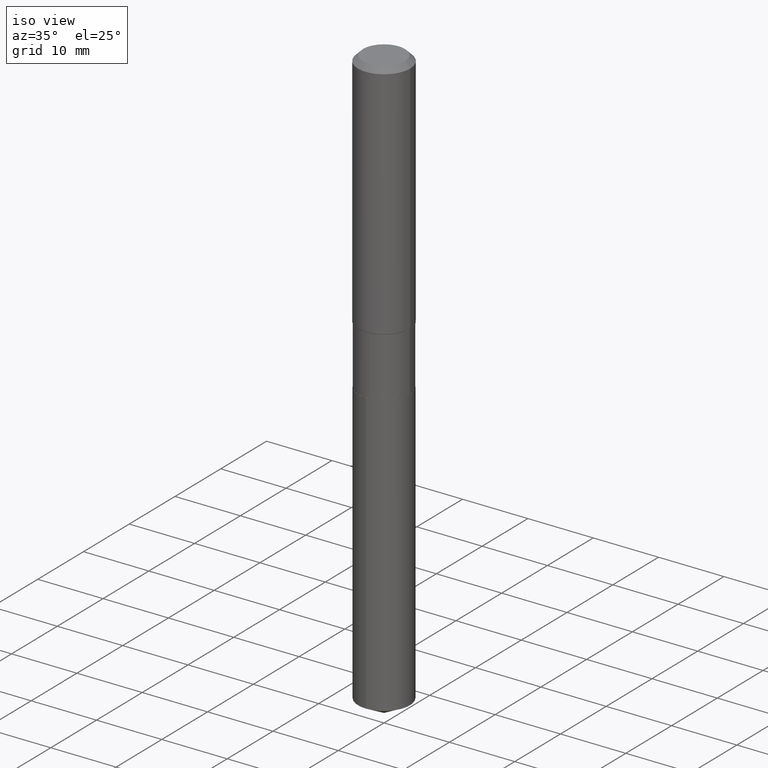
[diagram: clean part render]
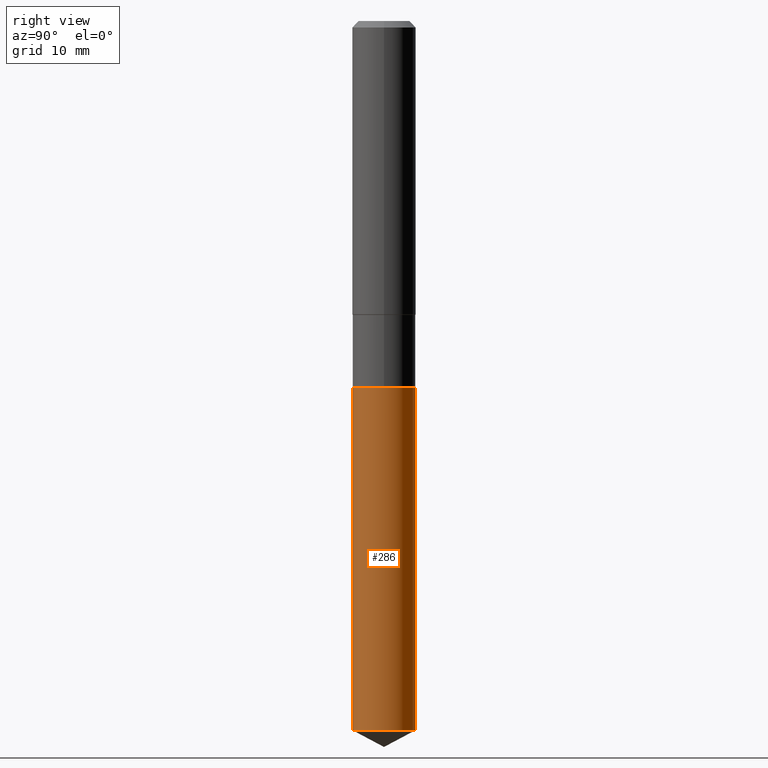
[diagram: tour spotlight — one face highlighted and labeled with its STEP entity id]
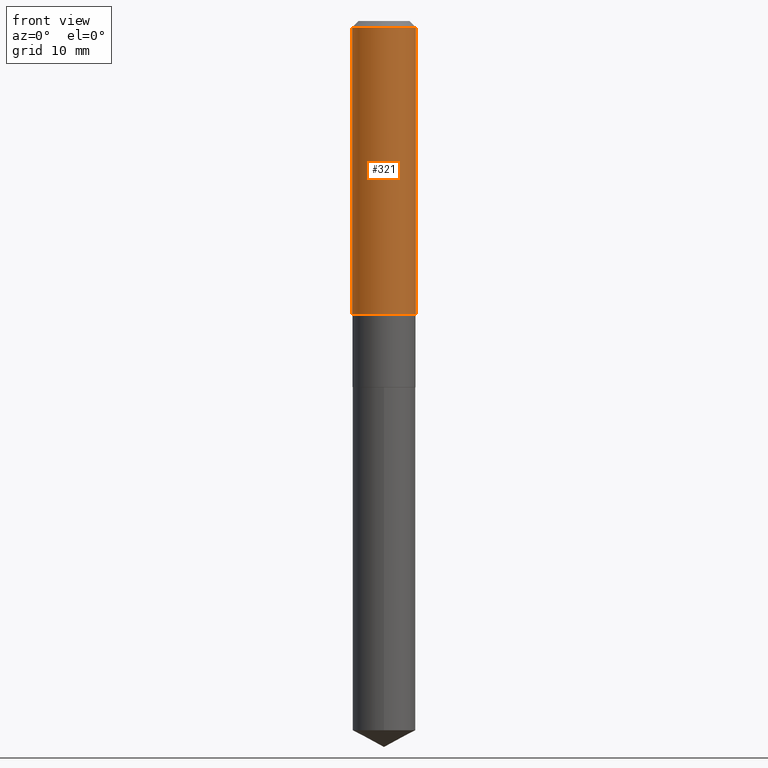
[diagram: tour spotlight — one face highlighted and labeled with its STEP entity id]
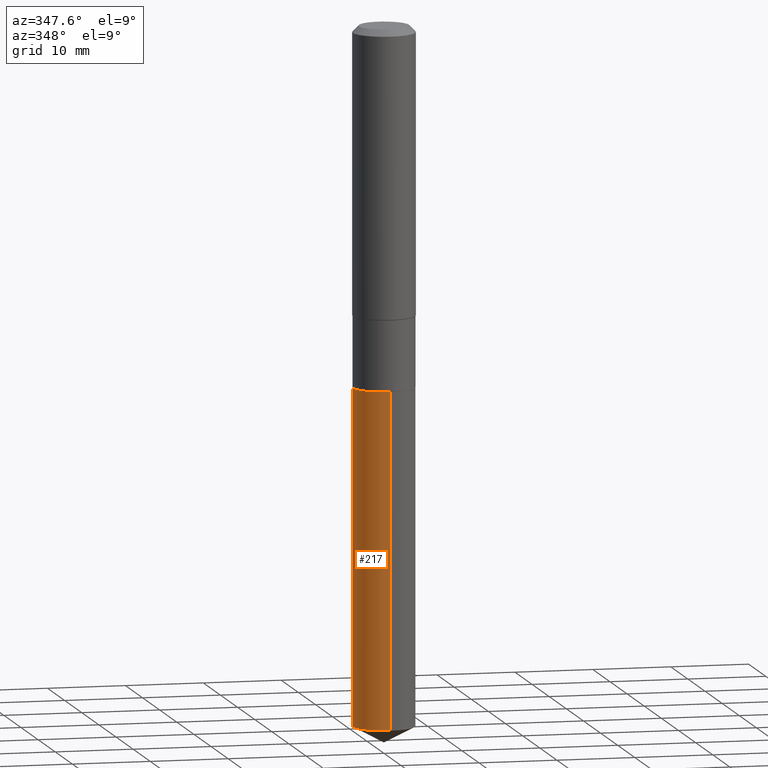
[diagram: tour spotlight — one face highlighted and labeled with its STEP entity id]
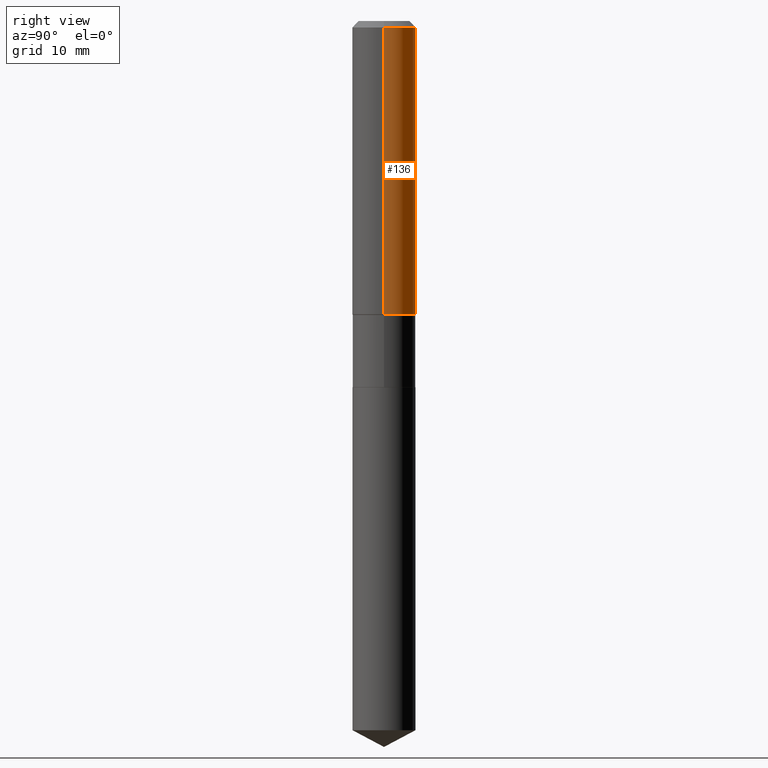
[diagram: tour spotlight — one face highlighted and labeled with its STEP entity id]
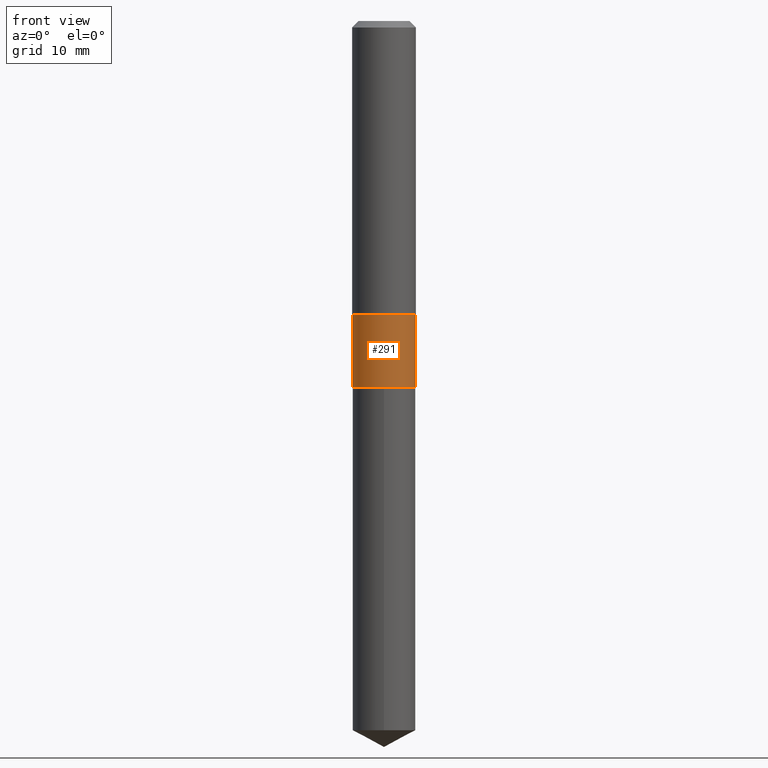
[diagram: tour spotlight — one face highlighted and labeled with its STEP entity id]
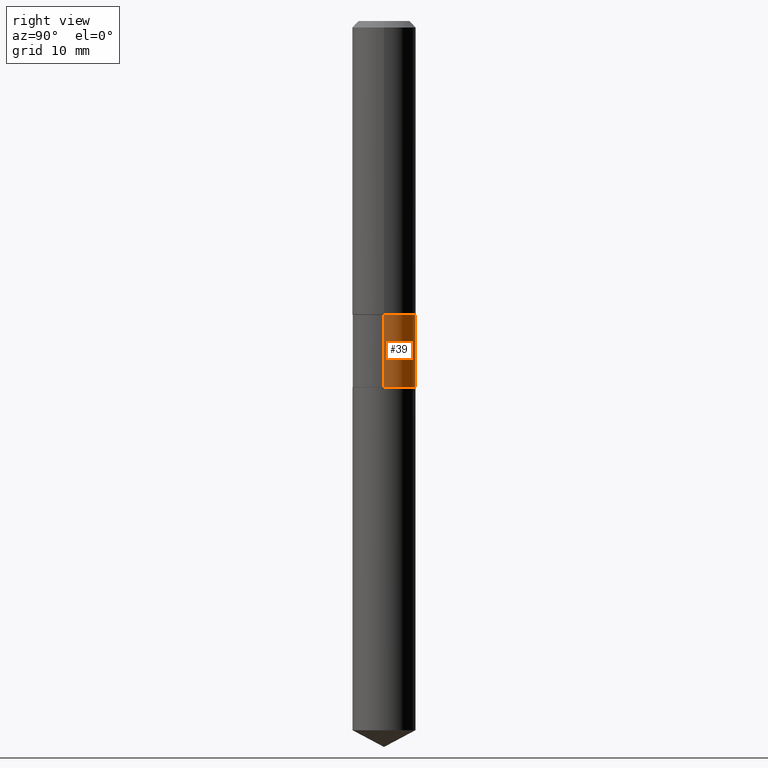
[diagram: tour spotlight — one face highlighted and labeled with its STEP entity id]
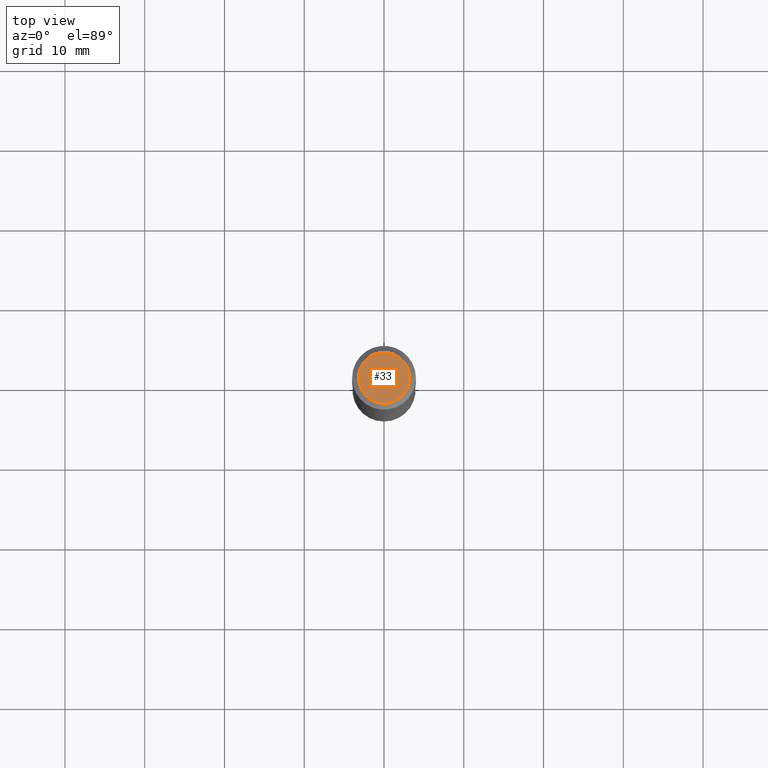
[diagram: tour spotlight — one face highlighted and labeled with its STEP entity id]
A machine part: a face-by-face anatomy tour. The part has 17 B-rep faces; the first image is the clean iso view, then the 7 largest visible faces are spotlighted one at a time (largest first), each with its STEP entity span.

Face 1 — right view, entity #286. In plain terms, the highlighted cylindrical surface (edge-blend (fillet) strip) has radius 3.9497 mm, axis along (-0, 0, 1).
Definition (entity closure, byte-faithful):
#11 = DIRECTION ( 'NONE',  ( -2.445434489770321491E-29, 3.491530481902329465E-15, 1.000000000000000000 ) ) ;
#16 = CARTESIAN_POINT ( 'NONE',  ( -1.085850696380170092E-15, -0.1555000000000062998, -1.807099999999999707 ) ) ;
#23 = CYLINDRICAL_SURFACE ( 'NONE', #138, 0.1554999999999999993 ) ;
#53 = CARTESIAN_POINT ( 'NONE',  ( 1.104893954107041376E-15, 0.1554999999999877869, -3.500019183376640530 ) ) ;
#72 = AXIS2_PLACEMENT_3D ( 'NONE', #437, #113, #259 ) ;
#73 = VERTEX_POINT ( 'NONE', #226 ) ;
#84 = ORIENTED_EDGE ( 'NONE', *, *, #387, .T. ) ;
#95 = DIRECTION ( 'NONE',  ( -2.445434489770321491E-29, 3.491530481902329860E-15, 1.000000000000000000 ) ) ;
#100 = CARTESIAN_POINT ( 'NONE',  ( -1.085850696380170092E-15, -0.1555000000000062998, -1.807099999999999707 ) ) ;
#113 = DIRECTION ( 'NONE',  ( -2.445434489770321491E-29, 3.491530481902329860E-15, 1.000000000000000000 ) ) ;
#129 = LINE ( 'NONE', #16, #158 ) ;
#131 = DIRECTION ( 'NONE',  ( -6.982962677686265133E-15, -1.000000000000000000, 3.513630860018345064E-15 ) ) ;
#138 = AXIS2_PLACEMENT_3D ( 'NONE', #357, #140, #427 ) ;
#140 = DIRECTION ( 'NONE',  ( -2.445434489770321491E-29, 3.491530481902329860E-15, 1.000000000000000000 ) ) ;
#158 = VECTOR ( 'NONE', #355, 39.37007874015748143 ) ;
#184 = EDGE_LOOP ( 'NONE', ( #84, #376, #360, #477 ) ) ;
#190 = VERTEX_POINT ( 'NONE', #209 ) ;
#191 = EDGE_CURVE ( 'NONE', #190, #282, #129, .T. ) ;
#199 = LINE ( 'NONE', #207, #379 ) ;
#207 = CARTESIAN_POINT ( 'NONE',  ( 1.104893954106999566E-15, 0.1554999999999936711, -1.807100000000000817 ) ) ;
#209 = CARTESIAN_POINT ( 'NONE',  ( -1.085850696380128874E-15, -0.1555000000000122118, -3.500019183376639642 ) ) ;
#226 = CARTESIAN_POINT ( 'NONE',  ( 1.104893954107041376E-15, 0.1554999999999936711, -1.807100000000000817 ) ) ;
#233 = AXIS2_PLACEMENT_3D ( 'NONE', #237, #95, #131 ) ;
#237 = CARTESIAN_POINT ( 'NONE',  ( 8.559129639080203787E-29, -1.222033485958018739E-14, -3.500019183376640086 ) ) ;
#251 = CIRCLE ( 'NONE', #72, 0.1554999999999999993 ) ;
#259 = DIRECTION ( 'NONE',  ( -6.982962677686265133E-15, -1.000000000000000000, 3.513630860018345064E-15 ) ) ;
#276 = EDGE_CURVE ( 'NONE', #282, #73, #251, .T. ) ;
#282 = VERTEX_POINT ( 'NONE', #100 ) ;
#286 = ADVANCED_FACE ( 'NONE', ( #398 ), #23, .T. ) ;
#355 = DIRECTION ( 'NONE',  ( -2.445434489770321491E-29, 3.491530481902329465E-15, 1.000000000000000000 ) ) ;
#357 = CARTESIAN_POINT ( 'NONE',  ( 4.419206679657160853E-29, -6.309455927423449056E-15, -1.807100000000000151 ) ) ;
#358 = VERTEX_POINT ( 'NONE', #53 ) ;
#360 = ORIENTED_EDGE ( 'NONE', *, *, #276, .F. ) ;
#365 = CIRCLE ( 'NONE', #233, 0.1554999999999999993 ) ;
#376 = ORIENTED_EDGE ( 'NONE', *, *, #396, .T. ) ;
#379 = VECTOR ( 'NONE', #11, 39.37007874015748143 ) ;
#387 = EDGE_CURVE ( 'NONE', #190, #358, #365, .T. ) ;
#396 = EDGE_CURVE ( 'NONE', #358, #73, #199, .T. ) ;
#398 = FACE_OUTER_BOUND ( 'NONE', #184, .T. ) ;
#427 = DIRECTION ( 'NONE',  ( -6.982962677686265133E-15, -1.000000000000000000, 3.513630860018345064E-15 ) ) ;
#437 = CARTESIAN_POINT ( 'NONE',  ( 4.419206679657160853E-29, -6.309455927423449056E-15, -1.807100000000000151 ) ) ;
#477 = ORIENTED_EDGE ( 'NONE', *, *, #191, .F. ) ;

Face 2 — front view, entity #321. In plain terms, the highlighted cylindrical surface (edge-blend (fillet) strip) has radius 4.0005 mm, axis along (-0, 0, 1).
Definition (entity closure, byte-faithful):
#6 = VERTEX_POINT ( 'NONE', #337 ) ;
#18 = CARTESIAN_POINT ( 'NONE',  ( 0.000000000000000000, 0.000000000000000000, 0.000000000000000000 ) ) ;
#27 = ORIENTED_EDGE ( 'NONE', *, *, #166, .T. ) ;
#60 = CARTESIAN_POINT ( 'NONE',  ( -0.1575000000000001676, -3.934465281019408143E-15, -1.447399999999999798 ) ) ;
#64 = EDGE_LOOP ( 'NONE', ( #110, #27, #435, #405 ) ) ;
#89 = DIRECTION ( 'NONE',  ( 1.000000000000000000, -6.982962677686265922E-15, 0.000000000000000000 ) ) ;
#94 = CARTESIAN_POINT ( 'NONE',  ( 0.1575000000000000011, -1.209798283909146741E-15, -0.03150000000000019451 ) ) ;
#99 = CARTESIAN_POINT ( 'NONE',  ( 3.539571550072366058E-29, -5.053570089841568113E-15, -1.447399999999999798 ) ) ;
#108 = CIRCLE ( 'NONE', #142, 0.1575000000000001676 ) ;
#110 = ORIENTED_EDGE ( 'NONE', *, *, #164, .F. ) ;
#133 = CARTESIAN_POINT ( 'NONE',  ( 7.703226739483226971E-31, -1.099816621735597538E-16, -0.03150000000000019451 ) ) ;
#134 = DIRECTION ( 'NONE',  ( -2.445468806185136597E-29, 3.491481338843145583E-15, 1.000000000000000000 ) ) ;
#142 = AXIS2_PLACEMENT_3D ( 'NONE', #99, #167, #349 ) ;
#164 = EDGE_CURVE ( 'NONE', #322, #415, #239, .T. ) ;
#166 = EDGE_CURVE ( 'NONE', #322, #6, #108, .T. ) ;
#167 = DIRECTION ( 'NONE',  ( -2.445468806185136597E-29, 3.491481338843145583E-15, 1.000000000000000000 ) ) ;
#168 = DIRECTION ( 'NONE',  ( -2.445468806185136597E-29, 3.491481338843145583E-15, 1.000000000000000000 ) ) ;
#169 = CIRCLE ( 'NONE', #223, 0.1575000000000000011 ) ;
#223 = AXIS2_PLACEMENT_3D ( 'NONE', #133, #168, #89 ) ;
#229 = VERTEX_POINT ( 'NONE', #94 ) ;
#239 = LINE ( 'NONE', #254, #433 ) ;
#254 = CARTESIAN_POINT ( 'NONE',  ( -0.1575000000000000844, 1.119104808822158392E-15, -7.747322767151481189E-30 ) ) ;
#269 = AXIS2_PLACEMENT_3D ( 'NONE', #18, #134, #394 ) ;
#315 = VECTOR ( 'NONE', #393, 39.37007874015748143 ) ;
#321 = ADVANCED_FACE ( 'NONE', ( #431 ), #359, .T. ) ;
#322 = VERTEX_POINT ( 'NONE', #60 ) ;
#330 = EDGE_CURVE ( 'NONE', #6, #229, #454, .T. ) ;
#337 = CARTESIAN_POINT ( 'NONE',  ( 0.1575000000000001676, -6.153386711577156382E-15, -1.447399999999999798 ) ) ;
#345 = EDGE_CURVE ( 'NONE', #415, #229, #169, .T. ) ;
#349 = DIRECTION ( 'NONE',  ( 1.000000000000000000, -6.982962677686267499E-15, 0.000000000000000000 ) ) ;
#359 = CYLINDRICAL_SURFACE ( 'NONE', #269, 0.1575000000000000844 ) ;
#385 = DIRECTION ( 'NONE',  ( -2.445468806185136877E-29, 3.491481338843145188E-15, 1.000000000000000000 ) ) ;
#393 = DIRECTION ( 'NONE',  ( -2.445468806185136877E-29, 3.491481338843145188E-15, 1.000000000000000000 ) ) ;
#394 = DIRECTION ( 'NONE',  ( 1.000000000000000000, -6.982962677686267499E-15, 4.876176775795936353E-29 ) ) ;
#405 = ORIENTED_EDGE ( 'NONE', *, *, #345, .F. ) ;
#415 = VERTEX_POINT ( 'NONE', #416 ) ;
#416 = CARTESIAN_POINT ( 'NONE',  ( -0.1575000000000000011, -1.462671067185405196E-15, -0.03150000000000019451 ) ) ;
#426 = CARTESIAN_POINT ( 'NONE',  ( 0.1575000000000000844, -1.099816621735587677E-15, 7.679978421878603638E-30 ) ) ;
#431 = FACE_OUTER_BOUND ( 'NONE', #64, .T. ) ;
#433 = VECTOR ( 'NONE', #385, 39.37007874015748143 ) ;
#435 = ORIENTED_EDGE ( 'NONE', *, *, #330, .T. ) ;
#454 = LINE ( 'NONE', #426, #315 ) ;

Face 3 — auxiliary view, entity #217. In plain terms, the highlighted cylindrical surface (edge-blend (fillet) strip) has radius 3.9497 mm, axis along (-0, 0, 1).
Definition (entity closure, byte-faithful):
#11 = DIRECTION ( 'NONE',  ( -2.445434489770321491E-29, 3.491530481902329465E-15, 1.000000000000000000 ) ) ;
#16 = CARTESIAN_POINT ( 'NONE',  ( -1.085850696380170092E-15, -0.1555000000000062998, -1.807099999999999707 ) ) ;
#19 = DIRECTION ( 'NONE',  ( -6.982962677686265133E-15, -1.000000000000000000, 3.513630860018345064E-15 ) ) ;
#30 = AXIS2_PLACEMENT_3D ( 'NONE', #468, #275, #213 ) ;
#53 = CARTESIAN_POINT ( 'NONE',  ( 1.104893954107041376E-15, 0.1554999999999877869, -3.500019183376640530 ) ) ;
#73 = VERTEX_POINT ( 'NONE', #226 ) ;
#88 = CIRCLE ( 'NONE', #30, 0.1554999999999999993 ) ;
#91 = CYLINDRICAL_SURFACE ( 'NONE', #406, 0.1554999999999999993 ) ;
#100 = CARTESIAN_POINT ( 'NONE',  ( -1.085850696380170092E-15, -0.1555000000000062998, -1.807099999999999707 ) ) ;
#121 = EDGE_CURVE ( 'NONE', #73, #282, #88, .T. ) ;
#129 = LINE ( 'NONE', #16, #158 ) ;
#150 = CIRCLE ( 'NONE', #318, 0.1554999999999999993 ) ;
#152 = ORIENTED_EDGE ( 'NONE', *, *, #191, .T. ) ;
#158 = VECTOR ( 'NONE', #355, 39.37007874015748143 ) ;
#190 = VERTEX_POINT ( 'NONE', #209 ) ;
#191 = EDGE_CURVE ( 'NONE', #190, #282, #129, .T. ) ;
#199 = LINE ( 'NONE', #207, #379 ) ;
#207 = CARTESIAN_POINT ( 'NONE',  ( 1.104893954106999566E-15, 0.1554999999999936711, -1.807100000000000817 ) ) ;
#209 = CARTESIAN_POINT ( 'NONE',  ( -1.085850696380128874E-15, -0.1555000000000122118, -3.500019183376639642 ) ) ;
#212 = ORIENTED_EDGE ( 'NONE', *, *, #121, .F. ) ;
#213 = DIRECTION ( 'NONE',  ( -6.982962677686265133E-15, -1.000000000000000000, 3.513630860018345064E-15 ) ) ;
#217 = ADVANCED_FACE ( 'NONE', ( #389 ), #91, .T. ) ;
#226 = CARTESIAN_POINT ( 'NONE',  ( 1.104893954107041376E-15, 0.1554999999999936711, -1.807100000000000817 ) ) ;
#230 = CARTESIAN_POINT ( 'NONE',  ( 8.559129639080203787E-29, -1.222033485958018739E-14, -3.500019183376640086 ) ) ;
#275 = DIRECTION ( 'NONE',  ( -2.445434489770321491E-29, 3.491530481902329860E-15, 1.000000000000000000 ) ) ;
#282 = VERTEX_POINT ( 'NONE', #100 ) ;
#290 = ORIENTED_EDGE ( 'NONE', *, *, #396, .F. ) ;
#301 = DIRECTION ( 'NONE',  ( -2.445434489770321491E-29, 3.491530481902329860E-15, 1.000000000000000000 ) ) ;
#312 = DIRECTION ( 'NONE',  ( -2.445434489770321491E-29, 3.491530481902329860E-15, 1.000000000000000000 ) ) ;
#318 = AXIS2_PLACEMENT_3D ( 'NONE', #230, #301, #424 ) ;
#355 = DIRECTION ( 'NONE',  ( -2.445434489770321491E-29, 3.491530481902329465E-15, 1.000000000000000000 ) ) ;
#358 = VERTEX_POINT ( 'NONE', #53 ) ;
#379 = VECTOR ( 'NONE', #11, 39.37007874015748143 ) ;
#389 = FACE_OUTER_BOUND ( 'NONE', #411, .T. ) ;
#396 = EDGE_CURVE ( 'NONE', #358, #73, #199, .T. ) ;
#406 = AXIS2_PLACEMENT_3D ( 'NONE', #463, #312, #19 ) ;
#411 = EDGE_LOOP ( 'NONE', ( #290, #485, #152, #212 ) ) ;
#424 = DIRECTION ( 'NONE',  ( -6.982962677686265133E-15, -1.000000000000000000, 3.513630860018345064E-15 ) ) ;
#429 = EDGE_CURVE ( 'NONE', #358, #190, #150, .T. ) ;
#463 = CARTESIAN_POINT ( 'NONE',  ( 4.419206679657160853E-29, -6.309455927423449056E-15, -1.807100000000000151 ) ) ;
#468 = CARTESIAN_POINT ( 'NONE',  ( 4.419206679657160853E-29, -6.309455927423449056E-15, -1.807100000000000151 ) ) ;
#485 = ORIENTED_EDGE ( 'NONE', *, *, #429, .T. ) ;

Face 4 — right view, entity #136. In plain terms, the highlighted cylindrical surface (edge-blend (fillet) strip) has radius 4.0005 mm, axis along (-0, 0, 1).
Definition (entity closure, byte-faithful):
#6 = VERTEX_POINT ( 'NONE', #337 ) ;
#14 = CIRCLE ( 'NONE', #283, 0.1575000000000001676 ) ;
#52 = CARTESIAN_POINT ( 'NONE',  ( 0.000000000000000000, 0.000000000000000000, 0.000000000000000000 ) ) ;
#60 = CARTESIAN_POINT ( 'NONE',  ( -0.1575000000000001676, -3.934465281019408143E-15, -1.447399999999999798 ) ) ;
#85 = DIRECTION ( 'NONE',  ( 1.000000000000000000, -6.982962677686267499E-15, 0.000000000000000000 ) ) ;
#94 = CARTESIAN_POINT ( 'NONE',  ( 0.1575000000000000011, -1.209798283909146741E-15, -0.03150000000000019451 ) ) ;
#112 = ORIENTED_EDGE ( 'NONE', *, *, #375, .T. ) ;
#123 = CARTESIAN_POINT ( 'NONE',  ( 7.703226739483226971E-31, -1.099816621735597538E-16, -0.03150000000000019451 ) ) ;
#132 = FACE_OUTER_BOUND ( 'NONE', #328, .T. ) ;
#135 = CYLINDRICAL_SURFACE ( 'NONE', #294, 0.1575000000000000844 ) ;
#136 = ADVANCED_FACE ( 'NONE', ( #132 ), #135, .T. ) ;
#139 = DIRECTION ( 'NONE',  ( -2.445468806185136597E-29, 3.491481338843145583E-15, 1.000000000000000000 ) ) ;
#164 = EDGE_CURVE ( 'NONE', #322, #415, #239, .T. ) ;
#206 = DIRECTION ( 'NONE',  ( 1.000000000000000000, -6.982962677686267499E-15, 4.876176775795936353E-29 ) ) ;
#229 = VERTEX_POINT ( 'NONE', #94 ) ;
#239 = LINE ( 'NONE', #254, #433 ) ;
#240 = DIRECTION ( 'NONE',  ( 1.000000000000000000, -6.982962677686265922E-15, 0.000000000000000000 ) ) ;
#243 = CARTESIAN_POINT ( 'NONE',  ( 3.539571550072366058E-29, -5.053570089841568113E-15, -1.447399999999999798 ) ) ;
#254 = CARTESIAN_POINT ( 'NONE',  ( -0.1575000000000000844, 1.119104808822158392E-15, -7.747322767151481189E-30 ) ) ;
#283 = AXIS2_PLACEMENT_3D ( 'NONE', #243, #462, #85 ) ;
#294 = AXIS2_PLACEMENT_3D ( 'NONE', #52, #139, #206 ) ;
#315 = VECTOR ( 'NONE', #393, 39.37007874015748143 ) ;
#322 = VERTEX_POINT ( 'NONE', #60 ) ;
#328 = EDGE_LOOP ( 'NONE', ( #112, #414, #368, #402 ) ) ;
#330 = EDGE_CURVE ( 'NONE', #6, #229, #454, .T. ) ;
#336 = EDGE_CURVE ( 'NONE', #229, #415, #440, .T. ) ;
#337 = CARTESIAN_POINT ( 'NONE',  ( 0.1575000000000001676, -6.153386711577156382E-15, -1.447399999999999798 ) ) ;
#338 = DIRECTION ( 'NONE',  ( -2.445468806185136597E-29, 3.491481338843145583E-15, 1.000000000000000000 ) ) ;
#368 = ORIENTED_EDGE ( 'NONE', *, *, #336, .F. ) ;
#372 = AXIS2_PLACEMENT_3D ( 'NONE', #123, #338, #240 ) ;
#375 = EDGE_CURVE ( 'NONE', #6, #322, #14, .T. ) ;
#385 = DIRECTION ( 'NONE',  ( -2.445468806185136877E-29, 3.491481338843145188E-15, 1.000000000000000000 ) ) ;
#393 = DIRECTION ( 'NONE',  ( -2.445468806185136877E-29, 3.491481338843145188E-15, 1.000000000000000000 ) ) ;
#402 = ORIENTED_EDGE ( 'NONE', *, *, #330, .F. ) ;
#414 = ORIENTED_EDGE ( 'NONE', *, *, #164, .T. ) ;
#415 = VERTEX_POINT ( 'NONE', #416 ) ;
#416 = CARTESIAN_POINT ( 'NONE',  ( -0.1575000000000000011, -1.462671067185405196E-15, -0.03150000000000019451 ) ) ;
#426 = CARTESIAN_POINT ( 'NONE',  ( 0.1575000000000000844, -1.099816621735587677E-15, 7.679978421878603638E-30 ) ) ;
#433 = VECTOR ( 'NONE', #385, 39.37007874015748143 ) ;
#440 = CIRCLE ( 'NONE', #372, 0.1575000000000000011 ) ;
#454 = LINE ( 'NONE', #426, #315 ) ;
#462 = DIRECTION ( 'NONE',  ( -2.445468806185136597E-29, 3.491481338843145583E-15, 1.000000000000000000 ) ) ;

Face 5 — front view, entity #291. In plain terms, the highlighted cylindrical surface (edge-blend (fillet) strip) has radius 3.9497 mm, axis along (-0, 0, 1).
Definition (entity closure, byte-faithful):
#26 = DIRECTION ( 'NONE',  ( -2.445468806185136597E-29, 3.491481338843145583E-15, 1.000000000000000000 ) ) ;
#29 = DIRECTION ( 'NONE',  ( -2.445468806185136597E-29, 3.491481338843145583E-15, 1.000000000000000000 ) ) ;
#35 = VERTEX_POINT ( 'NONE', #410 ) ;
#41 = ORIENTED_EDGE ( 'NONE', *, *, #111, .T. ) ;
#44 = EDGE_CURVE ( 'NONE', #35, #482, #189, .T. ) ;
#51 = CARTESIAN_POINT ( 'NONE',  ( -0.1554999999999999438, -4.579237665529685647E-15, -1.449399999999999800 ) ) ;
#65 = DIRECTION ( 'NONE',  ( 1.000000000000000000, -6.982962677686268288E-15, 4.876176775795936353E-29 ) ) ;
#69 = EDGE_LOOP ( 'NONE', ( #332, #41, #162, #74 ) ) ;
#74 = ORIENTED_EDGE ( 'NONE', *, *, #148, .F. ) ;
#75 = EDGE_CURVE ( 'NONE', #157, #473, #370, .T. ) ;
#80 = CIRCLE ( 'NONE', #278, 0.1554999999999999438 ) ;
#103 = VECTOR ( 'NONE', #488, 39.37007874015748143 ) ;
#111 = EDGE_CURVE ( 'NONE', #35, #157, #288, .T. ) ;
#114 = CARTESIAN_POINT ( 'NONE',  ( -0.1554999999999999438, 1.104893954106955390E-15, -7.648944065346376022E-30 ) ) ;
#148 = EDGE_CURVE ( 'NONE', #482, #473, #80, .T. ) ;
#157 = VERTEX_POINT ( 'NONE', #428 ) ;
#162 = ORIENTED_EDGE ( 'NONE', *, *, #75, .T. ) ;
#180 = VECTOR ( 'NONE', #418, 39.37007874015748143 ) ;
#181 = DIRECTION ( 'NONE',  ( 1.000000000000000000, -6.982962677686266711E-15, 0.000000000000000000 ) ) ;
#189 = LINE ( 'NONE', #114, #180 ) ;
#203 = DIRECTION ( 'NONE',  ( 1.000000000000000000, -6.982962677686269077E-15, 0.000000000000000000 ) ) ;
#210 = FACE_OUTER_BOUND ( 'NONE', #69, .T. ) ;
#250 = CARTESIAN_POINT ( 'NONE',  ( 4.417983945254068051E-29, -6.307710186754027552E-15, -1.806600000000000428 ) ) ;
#270 = CARTESIAN_POINT ( 'NONE',  ( 3.544462487684736704E-29, -5.060553052519254127E-15, -1.449399999999999800 ) ) ;
#278 = AXIS2_PLACEMENT_3D ( 'NONE', #270, #343, #203 ) ;
#288 = CIRCLE ( 'NONE', #371, 0.1554999999999999993 ) ;
#291 = ADVANCED_FACE ( 'NONE', ( #210 ), #310, .T. ) ;
#310 = CYLINDRICAL_SURFACE ( 'NONE', #486, 0.1554999999999999438 ) ;
#331 = CARTESIAN_POINT ( 'NONE',  ( 0.1554999999999999438, -1.085850696380214268E-15, 7.582454886362678420E-30 ) ) ;
#332 = ORIENTED_EDGE ( 'NONE', *, *, #44, .F. ) ;
#343 = DIRECTION ( 'NONE',  ( -2.445468806185136597E-29, 3.491481338843145583E-15, 1.000000000000000000 ) ) ;
#370 = LINE ( 'NONE', #331, #103 ) ;
#371 = AXIS2_PLACEMENT_3D ( 'NONE', #250, #29, #181 ) ;
#410 = CARTESIAN_POINT ( 'NONE',  ( -0.1554999999999999993, -4.579237665529685647E-15, -1.806600000000000428 ) ) ;
#418 = DIRECTION ( 'NONE',  ( -2.445468806185136877E-29, 3.491481338843145188E-15, 1.000000000000000000 ) ) ;
#428 = CARTESIAN_POINT ( 'NONE',  ( 0.1554999999999999993, -7.393560883134242215E-15, -1.806600000000000428 ) ) ;
#432 = CARTESIAN_POINT ( 'NONE',  ( 0.000000000000000000, 0.000000000000000000, 0.000000000000000000 ) ) ;
#459 = CARTESIAN_POINT ( 'NONE',  ( 0.1554999999999999438, -6.146403748899468790E-15, -1.449399999999999800 ) ) ;
#473 = VERTEX_POINT ( 'NONE', #459 ) ;
#482 = VERTEX_POINT ( 'NONE', #51 ) ;
#486 = AXIS2_PLACEMENT_3D ( 'NONE', #432, #26, #65 ) ;
#488 = DIRECTION ( 'NONE',  ( -2.445468806185136877E-29, 3.491481338843145188E-15, 1.000000000000000000 ) ) ;

Face 6 — right view, entity #39. In plain terms, the highlighted cylindrical surface (edge-blend (fillet) strip) has radius 3.9497 mm, axis along (-0, 0, 1).
Definition (entity closure, byte-faithful):
#3 = DIRECTION ( 'NONE',  ( 1.000000000000000000, -6.982962677686268288E-15, 4.876176775795936353E-29 ) ) ;
#4 = CIRCLE ( 'NONE', #63, 0.1554999999999999993 ) ;
#35 = VERTEX_POINT ( 'NONE', #410 ) ;
#36 = DIRECTION ( 'NONE',  ( -2.445468806185136597E-29, 3.491481338843145583E-15, 1.000000000000000000 ) ) ;
#39 = ADVANCED_FACE ( 'NONE', ( #262 ), #300, .T. ) ;
#44 = EDGE_CURVE ( 'NONE', #35, #482, #189, .T. ) ;
#51 = CARTESIAN_POINT ( 'NONE',  ( -0.1554999999999999438, -4.579237665529685647E-15, -1.449399999999999800 ) ) ;
#61 = DIRECTION ( 'NONE',  ( 1.000000000000000000, -6.982962677686266711E-15, 0.000000000000000000 ) ) ;
#63 = AXIS2_PLACEMENT_3D ( 'NONE', #306, #67, #61 ) ;
#67 = DIRECTION ( 'NONE',  ( -2.445468806185136597E-29, 3.491481338843145583E-15, 1.000000000000000000 ) ) ;
#75 = EDGE_CURVE ( 'NONE', #157, #473, #370, .T. ) ;
#103 = VECTOR ( 'NONE', #488, 39.37007874015748143 ) ;
#104 = EDGE_LOOP ( 'NONE', ( #436, #363, #257, #147 ) ) ;
#114 = CARTESIAN_POINT ( 'NONE',  ( -0.1554999999999999438, 1.104893954106955390E-15, -7.648944065346376022E-30 ) ) ;
#137 = AXIS2_PLACEMENT_3D ( 'NONE', #266, #453, #3 ) ;
#145 = DIRECTION ( 'NONE',  ( 1.000000000000000000, -6.982962677686269077E-15, 0.000000000000000000 ) ) ;
#147 = ORIENTED_EDGE ( 'NONE', *, *, #75, .F. ) ;
#157 = VERTEX_POINT ( 'NONE', #428 ) ;
#180 = VECTOR ( 'NONE', #418, 39.37007874015748143 ) ;
#185 = EDGE_CURVE ( 'NONE', #157, #35, #4, .T. ) ;
#189 = LINE ( 'NONE', #114, #180 ) ;
#216 = AXIS2_PLACEMENT_3D ( 'NONE', #446, #36, #145 ) ;
#235 = EDGE_CURVE ( 'NONE', #473, #482, #289, .T. ) ;
#257 = ORIENTED_EDGE ( 'NONE', *, *, #235, .F. ) ;
#262 = FACE_OUTER_BOUND ( 'NONE', #104, .T. ) ;
#266 = CARTESIAN_POINT ( 'NONE',  ( 0.000000000000000000, 0.000000000000000000, 0.000000000000000000 ) ) ;
#289 = CIRCLE ( 'NONE', #216, 0.1554999999999999438 ) ;
#300 = CYLINDRICAL_SURFACE ( 'NONE', #137, 0.1554999999999999438 ) ;
#306 = CARTESIAN_POINT ( 'NONE',  ( 4.417983945254068051E-29, -6.307710186754027552E-15, -1.806600000000000428 ) ) ;
#331 = CARTESIAN_POINT ( 'NONE',  ( 0.1554999999999999438, -1.085850696380214268E-15, 7.582454886362678420E-30 ) ) ;
#363 = ORIENTED_EDGE ( 'NONE', *, *, #44, .T. ) ;
#370 = LINE ( 'NONE', #331, #103 ) ;
#410 = CARTESIAN_POINT ( 'NONE',  ( -0.1554999999999999993, -4.579237665529685647E-15, -1.806600000000000428 ) ) ;
#418 = DIRECTION ( 'NONE',  ( -2.445468806185136877E-29, 3.491481338843145188E-15, 1.000000000000000000 ) ) ;
#428 = CARTESIAN_POINT ( 'NONE',  ( 0.1554999999999999993, -7.393560883134242215E-15, -1.806600000000000428 ) ) ;
#436 = ORIENTED_EDGE ( 'NONE', *, *, #185, .T. ) ;
#446 = CARTESIAN_POINT ( 'NONE',  ( 3.544462487684736704E-29, -5.060553052519254127E-15, -1.449399999999999800 ) ) ;
#453 = DIRECTION ( 'NONE',  ( -2.445468806185136597E-29, 3.491481338843145583E-15, 1.000000000000000000 ) ) ;
#459 = CARTESIAN_POINT ( 'NONE',  ( 0.1554999999999999438, -6.146403748899468790E-15, -1.449399999999999800 ) ) ;
#473 = VERTEX_POINT ( 'NONE', #459 ) ;
#482 = VERTEX_POINT ( 'NONE', #51 ) ;
#488 = DIRECTION ( 'NONE',  ( -2.445468806185136877E-29, 3.491481338843145188E-15, 1.000000000000000000 ) ) ;

Face 7 — top view, entity #33. In plain terms, the highlighted planar face has unit normal (0, -0, -1).
Definition (entity closure, byte-faithful):
#10 = PLANE ( 'NONE',  #364 ) ;
#33 = ADVANCED_FACE ( 'NONE', ( #264 ), #10, .F. ) ;
#38 = DIRECTION ( 'NONE',  ( 2.438088387897960049E-29, -3.491481338843145188E-15, -1.000000000000000000 ) ) ;
#109 = AXIS2_PLACEMENT_3D ( 'NONE', #273, #308, #423 ) ;
#182 = CIRCLE ( 'NONE', #450, 0.1260000000000000009 ) ;
#186 = VERTEX_POINT ( 'NONE', #362 ) ;
#194 = CARTESIAN_POINT ( 'NONE',  ( -4.719860820353100843E-47, 6.738710358733633822E-33, 1.930043355456229866E-18 ) ) ;
#208 = EDGE_CURVE ( 'NONE', #219, #186, #335, .T. ) ;
#219 = VERTEX_POINT ( 'NONE', #425 ) ;
#234 = ORIENTED_EDGE ( 'NONE', *, *, #448, .T. ) ;
#264 = FACE_OUTER_BOUND ( 'NONE', #325, .T. ) ;
#273 = CARTESIAN_POINT ( 'NONE',  ( -9.439721640706201686E-47, 1.347742071746726764E-32, 3.860086710912459732E-18 ) ) ;
#304 = DIRECTION ( 'NONE',  ( -2.445468806185136597E-29, 3.491481338843145583E-15, 1.000000000000000000 ) ) ;
#308 = DIRECTION ( 'NONE',  ( -2.445468806185136597E-29, 3.491481338843145583E-15, 1.000000000000000000 ) ) ;
#325 = EDGE_LOOP ( 'NONE', ( #480, #234 ) ) ;
#335 = CIRCLE ( 'NONE', #109, 0.1260000000000000009 ) ;
#362 = CARTESIAN_POINT ( 'NONE',  ( 0.1260000000000000009, -1.027466422270894443E-15, 3.860086710919128072E-18 ) ) ;
#364 = AXIS2_PLACEMENT_3D ( 'NONE', #194, #38, #490 ) ;
#377 = DIRECTION ( 'NONE',  ( 1.000000000000000000, -6.982962677686265922E-15, 4.876281427513067258E-29 ) ) ;
#423 = DIRECTION ( 'NONE',  ( 1.000000000000000000, -6.982962677686265922E-15, 4.876281427513067258E-29 ) ) ;
#425 = CARTESIAN_POINT ( 'NONE',  ( -0.1260000000000000009, 9.348441284752484904E-16, 3.860086710906114178E-18 ) ) ;
#448 = EDGE_CURVE ( 'NONE', #186, #219, #182, .T. ) ;
#450 = AXIS2_PLACEMENT_3D ( 'NONE', #464, #304, #377 ) ;
#464 = CARTESIAN_POINT ( 'NONE',  ( -9.439721640706201686E-47, 1.347742071746726764E-32, 3.860086710912459732E-18 ) ) ;
#480 = ORIENTED_EDGE ( 'NONE', *, *, #208, .T. ) ;
#490 = DIRECTION ( 'NONE',  ( -1.000000000000000000, 6.982962677686265922E-15, -4.876176775795935793E-29 ) ) ;